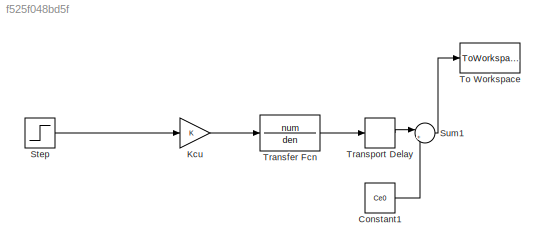
MODEL slx_f525f048bd5f
KIND model
CONFIG AbsTol = auto
CONFIG EnableMultiTasking = on
CONFIG FixedStep = auto
CONFIG MaxStep = 0.1
CONFIG MinStep = auto
CONFIG RelTol = 1e-6
CONFIG SampleTimeConstraint = Unconstrained
CONFIG SolverName = ode45
CONFIG StartTime = 0.0
CONFIG StopTime = 1000
BLOCK [Constant] Constant1
  Value = Ce0
BLOCK [Gain] Kcu
BLOCK [Step] Step
  After = Fh0*0.04
  SampleTime = 0
  Time = 100
BLOCK [Sum] Sum1
  Inputs = |++
  Ports = [2, 1]
BLOCK [ToWorkspace] To Workspace
  MaxDataPoints = 10001
  Ports = [1]
  SampleTime = 1
  VariableName = Salida_ver
BLOCK [TransferFcn] Transfer Fcn
  Denominator = den
  Numerator = num
BLOCK [TransportDelay] Transport Delay
  DelayTime = 21.4672
  Ports = [1, 1]
LINE Constant1:1 -> Sum1:2
LINE Kcu:1 -> Transfer Fcn:1
LINE Step:1 -> Kcu:1
LINE Sum1:1 -> To Workspace:1
LINE Transfer Fcn:1 -> Transport Delay:1
LINE Transport Delay:1 -> Sum1:1
